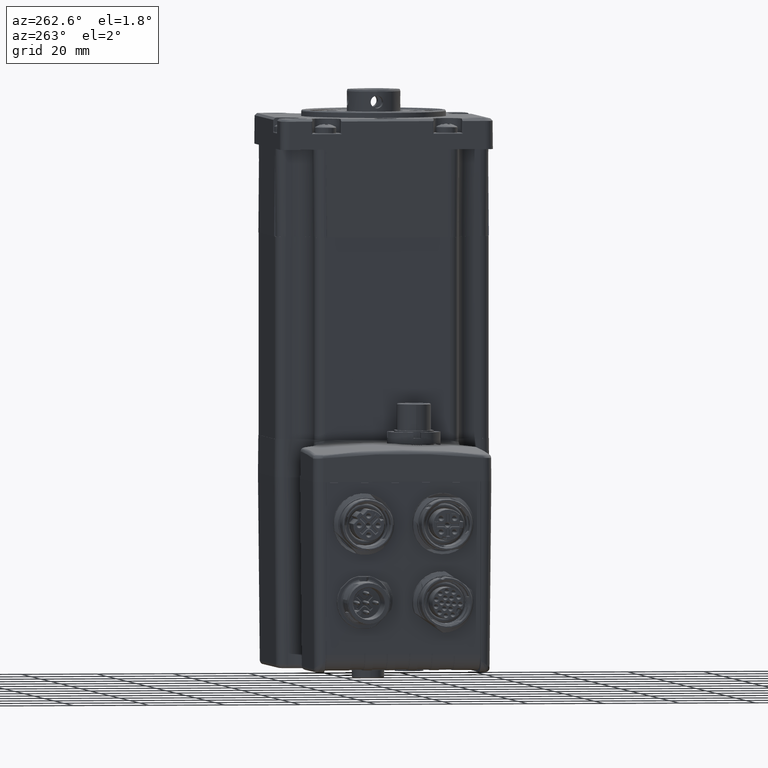
[diagram: clean part render]
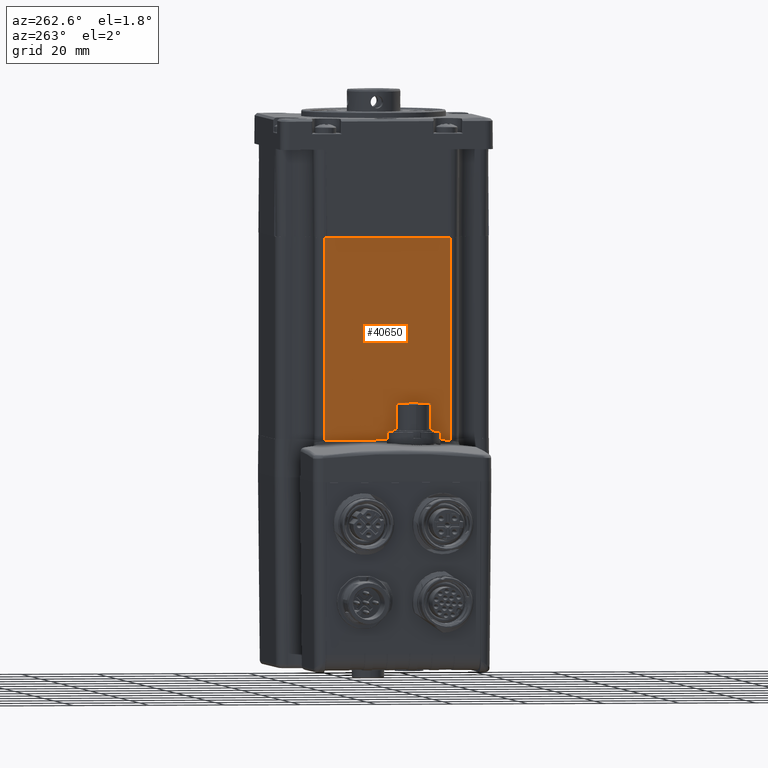
[diagram: same view with one face highlighted and labeled with its STEP entity id]
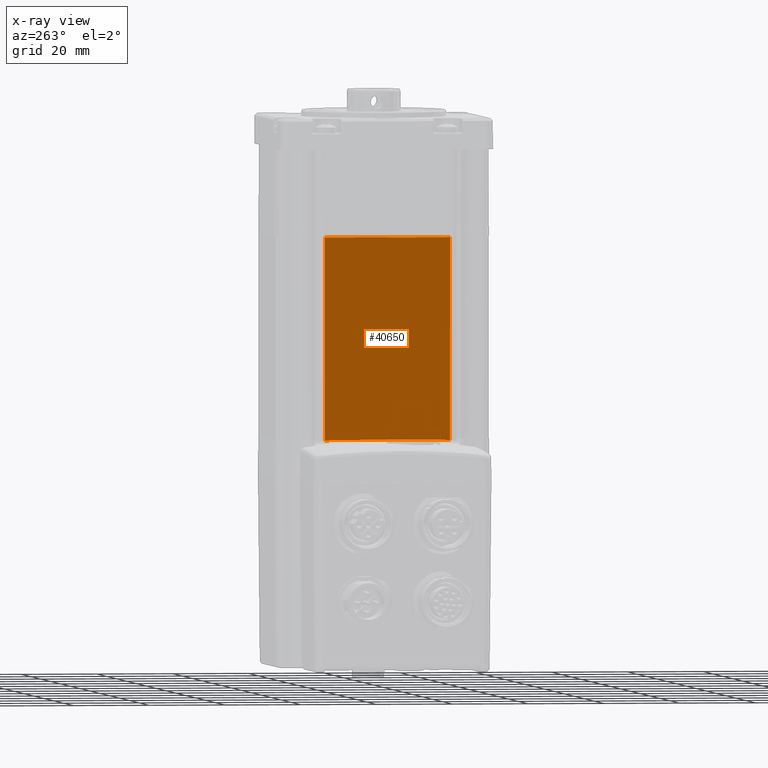
[diagram: x-ray of the same camera — body ghosted, the highlighted face saturated]
A machine part, auxiliary view. The second image highlights one B-rep face of the part: STEP entity #40650.
The next image is the same camera in x-ray: the body ghosted, the highlighted face saturated — about 0% of this face is hidden behind the body in this view.
In plain terms, the highlighted planar face has unit normal (1, 0, 0).
Its self-contained STEP definition (entity closure, byte-faithful):
#980 = VECTOR ( 'NONE', #8201, 1000.000000000000000 ) ;
#1112 = DIRECTION ( 'NONE',  ( 0.0000000000000000000, 0.0000000000000000000, -1.000000000000000000 ) ) ;
#4977 = ORIENTED_EDGE ( 'NONE', *, *, #54433, .T. ) ;
#6938 = AXIS2_PLACEMENT_3D ( 'NONE', #103887, #113698, #55222 ) ;
#8201 = DIRECTION ( 'NONE',  ( 0.0000000000000000000, 0.0000000000000000000, -1.000000000000000000 ) ) ;
#11892 = CARTESIAN_POINT ( 'NONE',  ( -28.19999999999998863, -16.50000000000000000, 9.999999999999973355 ) ) ;
#12420 = CARTESIAN_POINT ( 'NONE',  ( -28.19999999999998863, -16.50000000000000000, 9.999999999999973355 ) ) ;
#13175 = DIRECTION ( 'NONE',  ( 0.0000000000000000000, 0.0000000000000000000, -1.000000000000000000 ) ) ;
#13603 = CARTESIAN_POINT ( 'NONE',  ( -28.20000000000000995, 16.50092639895127178, -43.18140870090756067 ) ) ;
#15093 = EDGE_CURVE ( 'NONE', #82713, #122290, #47242, .T. ) ;
#15406 = ORIENTED_EDGE ( 'NONE', *, *, #67822, .F. ) ;
#18421 = CARTESIAN_POINT ( 'NONE',  ( -28.20000000000000995, -16.50092639895128244, -43.18140870090758909 ) ) ;
#20671 = CARTESIAN_POINT ( 'NONE',  ( -28.19999999999998863, -16.50000000000000000, 9.999999999999973355 ) ) ;
#21208 = DIRECTION ( 'NONE',  ( 0.0000000000000000000, -1.000000000000000000, -0.0000000000000000000 ) ) ;
#24721 = ORIENTED_EDGE ( 'NONE', *, *, #15093, .T. ) ;
#25500 = VECTOR ( 'NONE', #97548, 999.9999999999998863 ) ;
#27973 = LINE ( 'NONE', #80074, #101349 ) ;
#27979 = CARTESIAN_POINT ( 'NONE',  ( -28.19999999999998863, -4.711098017530384041, -43.00000000000002132 ) ) ;
#30033 = FACE_OUTER_BOUND ( 'NONE', #68525, .T. ) ;
#31556 = CARTESIAN_POINT ( 'NONE',  ( -28.19999999490953968, -16.47850279563876086, -42.99999999994842881 ) ) ;
#31959 = DIRECTION ( 'NONE',  ( 1.000000000000000000, 0.0000000000000000000, 0.0000000000000000000 ) ) ;
#35108 = EDGE_CURVE ( 'NONE', #102443, #90470, #114734, .T. ) ;
#35318 = CIRCLE ( 'NONE', #112555, 200.4987531152684426 ) ;
#35689 = CARTESIAN_POINT ( 'NONE',  ( -28.20000000000000995, 14.13329405260344274, -43.00000000000002132 ) ) ;
#36763 = VERTEX_POINT ( 'NONE', #31556 ) ;
#36815 = VERTEX_POINT ( 'NONE', #13603 ) ;
#38075 = ORIENTED_EDGE ( 'NONE', *, *, #50278, .F. ) ;
#40349 = PLANE ( 'NONE',  #82236 ) ;
#40539 = EDGE_CURVE ( 'NONE', #122290, #36815, #43772, .T. ) ;
#40650 = ADVANCED_FACE ( 'NONE', ( #30033 ), #40349, .F. ) ;
#43772 = LINE ( 'NONE', #67299, #25500 ) ;
#46592 = VECTOR ( 'NONE', #99491, 1000.000000000000000 ) ;
#47242 = LINE ( 'NONE', #55485, #88593 ) ;
#49114 = ORIENTED_EDGE ( 'NONE', *, *, #59599, .T. ) ;
#49767 = CARTESIAN_POINT ( 'NONE',  ( -28.19999999999998863, -16.50000000000000000, 9.999999999999973355 ) ) ;
#50278 = EDGE_CURVE ( 'NONE', #94712, #36763, #95618, .T. ) ;
#53130 = ORIENTED_EDGE ( 'NONE', *, *, #111270, .F. ) ;
#54433 = EDGE_CURVE ( 'NONE', #78744, #102443, #82323, .T. ) ;
#55222 = DIRECTION ( 'NONE',  ( 0.0000000000000000000, 0.0000000000000000000, -1.000000000000000000 ) ) ;
#55485 = CARTESIAN_POINT ( 'NONE',  ( -28.19999999999998863, 16.49999999999997868, 9.999999999999973355 ) ) ;
#59599 = EDGE_CURVE ( 'NONE', #36815, #78744, #35318, .T. ) ;
#62346 = CARTESIAN_POINT ( 'NONE',  ( -28.20000000000000995, -16.22522527851435470, -41.21969329612326760 ) ) ;
#62590 = VECTOR ( 'NONE', #119062, 1000.000000000000000 ) ;
#67299 = CARTESIAN_POINT ( 'NONE',  ( -28.20000000000000995, 16.22522527851434759, -41.21969329612326760 ) ) ;
#67822 = EDGE_CURVE ( 'NONE', #113733, #118904, #72551, .T. ) ;
#68266 = EDGE_CURVE ( 'NONE', #82713, #113733, #27973, .T. ) ;
#68525 = EDGE_LOOP ( 'NONE', ( #24721, #105581, #49114, #4977, #110305, #99503, #38075, #53130, #15406, #80903 ) ) ;
#72551 = LINE ( 'NONE', #12420, #46592 ) ;
#76387 = VECTOR ( 'NONE', #121227, 999.9999999999998863 ) ;
#76575 = CARTESIAN_POINT ( 'NONE',  ( -28.19999999999998863, 4.711098017543180916, -43.00000000000002132 ) ) ;
#78744 = VERTEX_POINT ( 'NONE', #35689 ) ;
#80074 = CARTESIAN_POINT ( 'NONE',  ( -28.19999999999998863, -16.50000000000000000, 9.999999999999973355 ) ) ;
#80903 = ORIENTED_EDGE ( 'NONE', *, *, #68266, .F. ) ;
#82236 = AXIS2_PLACEMENT_3D ( 'NONE', #49767, #99661, #1112 ) ;
#82323 = B_SPLINE_CURVE_WITH_KNOTS ( 'NONE', 3,
 ( #85535, #76575, #27979, #105639 ),
 .UNSPECIFIED., .F., .F.,
 ( 4, 4 ),
 ( 0.07171836204191633923, 0.9282816379576952492 ),
 .UNSPECIFIED. ) ;
#82713 = VERTEX_POINT ( 'NONE', #91388 ) ;
#83589 = CARTESIAN_POINT ( 'NONE',  ( -28.19999999999998863, 15.99928214989761166, 9.999999999999973355 ) ) ;
#85535 = CARTESIAN_POINT ( 'NONE',  ( -28.20000000000000995, 14.13329405260344274, -43.00000000000002132 ) ) ;
#85940 = CARTESIAN_POINT ( 'NONE',  ( -28.19999999999998863, -15.99928214989931163, 9.999999999999973355 ) ) ;
#88593 = VECTOR ( 'NONE', #114789, 1000.000000000000000 ) ;
#89946 = LINE ( 'NONE', #11892, #62590 ) ;
#90470 = VERTEX_POINT ( 'NONE', #18421 ) ;
#90757 = EDGE_CURVE ( 'NONE', #90470, #36763, #117714, .T. ) ;
#91388 = CARTESIAN_POINT ( 'NONE',  ( -28.19999999999998863, 16.49999999999997868, 9.999999999999973355 ) ) ;
#94712 = VERTEX_POINT ( 'NONE', #20671 ) ;
#95618 = LINE ( 'NONE', #125126, #980 ) ;
#97548 = DIRECTION ( 'NONE',  ( 0.0000000000000000000, 0.1391731009600657432, -0.9902680687415703620 ) ) ;
#99491 = DIRECTION ( 'NONE',  ( 0.0000000000000000000, -1.000000000000000000, -0.0000000000000000000 ) ) ;
#99503 = ORIENTED_EDGE ( 'NONE', *, *, #90757, .T. ) ;
#99661 = DIRECTION ( 'NONE',  ( 1.000000000000000000, 0.0000000000000000000, 0.0000000000000000000 ) ) ;
#99666 = CARTESIAN_POINT ( 'NONE',  ( -28.20000000000000995, -14.13329405260344274, -43.00000000000002132 ) ) ;
#100233 = CARTESIAN_POINT ( 'NONE',  ( -28.20000000000000995, 0.0000000000000000000, -243.0000000000000568 ) ) ;
#101349 = VECTOR ( 'NONE', #21208, 1000.000000000000000 ) ;
#102443 = VERTEX_POINT ( 'NONE', #99666 ) ;
#103887 = CARTESIAN_POINT ( 'NONE',  ( -28.20000000000000995, 0.0000000000000000000, -243.0000000000000568 ) ) ;
#105581 = ORIENTED_EDGE ( 'NONE', *, *, #40539, .T. ) ;
#105639 = CARTESIAN_POINT ( 'NONE',  ( -28.20000000000000995, -14.13329405260344274, -43.00000000000002132 ) ) ;
#110305 = ORIENTED_EDGE ( 'NONE', *, *, #35108, .T. ) ;
#111270 = EDGE_CURVE ( 'NONE', #118904, #94712, #89946, .T. ) ;
#112555 = AXIS2_PLACEMENT_3D ( 'NONE', #100233, #31959, #13175 ) ;
#113698 = DIRECTION ( 'NONE',  ( 1.000000000000000000, 0.0000000000000000000, 0.0000000000000000000 ) ) ;
#113733 = VERTEX_POINT ( 'NONE', #83589 ) ;
#114734 = CIRCLE ( 'NONE', #6938, 200.4987531152684426 ) ;
#114789 = DIRECTION ( 'NONE',  ( 0.0000000000000000000, 0.0000000000000000000, -1.000000000000000000 ) ) ;
#117714 = LINE ( 'NONE', #62346, #76387 ) ;
#118904 = VERTEX_POINT ( 'NONE', #85940 ) ;
#119062 = DIRECTION ( 'NONE',  ( 0.0000000000000000000, -1.000000000000000000, -0.0000000000000000000 ) ) ;
#120003 = CARTESIAN_POINT ( 'NONE',  ( -28.19999999620543463, 16.48157353651145840, -42.99999999996146016 ) ) ;
#121227 = DIRECTION ( 'NONE',  ( -0.0000000000000000000, 0.1391731009600657432, 0.9902680687415703620 ) ) ;
#122290 = VERTEX_POINT ( 'NONE', #120003 ) ;
#125126 = CARTESIAN_POINT ( 'NONE',  ( -28.19999999999998863, -16.50000000000000000, 9.999999999999973355 ) ) ;